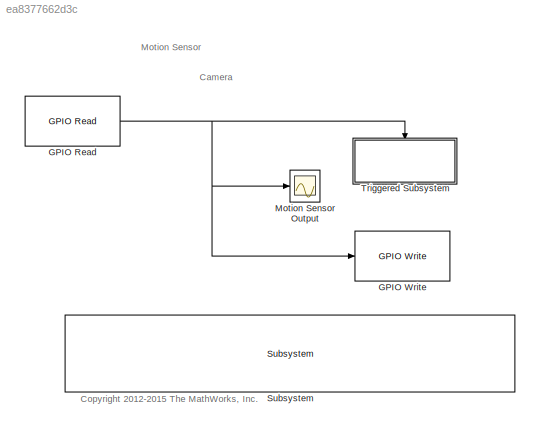
MODEL slx_ea8377662d3c
KIND model
CONFIG AbsTol = auto
CONFIG EnableMultiTasking = on
CONFIG FixedStep = auto
CONFIG MaxStep = auto
CONFIG MinStep = auto
CONFIG RelTol = 1e-3
CONFIG SampleTimeConstraint = Unconstrained
CONFIG Solver = ode45
CONFIG SolverName = ode45
CONFIG StartTime = 0.0
CONFIG StopTime = 10.0
BLOCK [Reference] GPIO Read  REF=embdlinuxlib/GPIO Read
  Ports = [0, 1]
  SourceBlock = embdlinuxlib/GPIO Read
  SourceProductBaseCode = RASPPI
  SourceProductName = Simulink Support Package for Raspberry Pi Hardware
  SourceType = GPIO Read
BLOCK [Reference] GPIO Write  REF=embdlinuxlib/GPIO Write
  Ports = [1]
  SourceBlock = embdlinuxlib/GPIO Write
  SourceProductBaseCode = RASPPI
  SourceProductName = Simulink Support Package for Raspberry Pi Hardware
  SourceType = GPIO Write
BLOCK [Scope] Motion Sensor Output
  Floating = off
  NumInputPorts = 1
  Ports = [1]
  ScopeSpecificationString = Simulink.scopes.TimeScopeBlockCfg('CurrentConfiguration', extmgr.ConfigurationSet(extmgr.Configuration('Core','General UI',true),extmgr.Configuration('Core','Source UI',true),extmgr.Configuration('Sources','WiredSimulink',true,'DataLoggingSaveFormat','StructureWithTime','DataLoggingLimitDataPoints',true,'DataLoggingDecimation','1','DataLoggingDecimateData',true),extmgr.Configuration('Visuals','Tim...<+889ch>
BLOCK [Reference] Subsystem  REF=realtime_examples_misc/Subsystem
  Ports = []
  SourceBlock = realtime_examples_misc/Subsystem
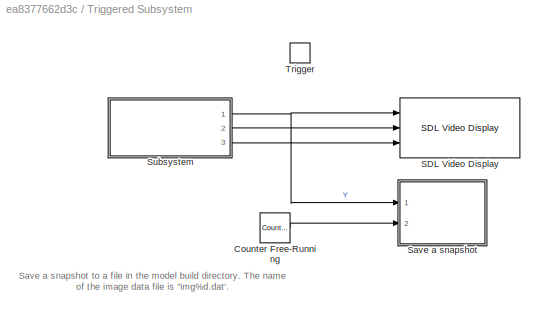
BLOCK [SubSystem] Triggered Subsystem
  Ports = [0, 0, 0, 1]
  RequestExecContextInheritance = off
  TreatAsAtomicUnit = on
BLOCK [Reference] Triggered Subsystem/Counter Free-Running  REF=simulink/Sources/Counter
Free-Running
  Ports = [0, 1]
  SourceBlock = simulink/Sources/Counter\nFree-Running
  SourceProductBaseCode = SL
  SourceProductName = Simulink
  SourceType = Counter Free-Running
BLOCK [Reference] Triggered Subsystem/SDL Video Display  REF=embdlinuxlib/SDL Video Display
  Ports = [3]
  SourceBlock = embdlinuxlib/SDL Video Display
  SourceProductBaseCode = RASPPI
  SourceProductName = Simulink Support Package for Raspberry Pi Hardware
  SourceType = SDL Video Display
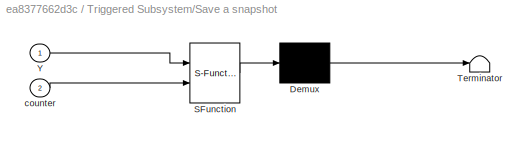
BLOCK [SubSystem] Triggered Subsystem/Save a snapshot
  ErrorFcn = Stateflow.Translate.translate
  PermitHierarchicalResolution = ExplicitOnly
  Ports = [2]
  RequestExecContextInheritance = off
  SFBlockType = MATLAB Function
  TreatAsAtomicUnit = on
BLOCK [Demux] Triggered Subsystem/Save a snapshot/ Demux 
  Outputs = 1
  Ports = [1, 1]
BLOCK [S-Function] Triggered Subsystem/Save a snapshot/ SFunction 
  EnableBusSupport = off
  FunctionName = sf_sfun
  PortCounts = [2 1]
  Ports = [2, 1]
  SFcnIsStateOwnerBlock = off
  SFunctionDeploymentMode = off
  Tag = Stateflow S-Function raspberrypi_motion_sensor_camera 2
BLOCK [Terminator] Triggered Subsystem/Save a snapshot/ Terminator 
BLOCK [Inport] Triggered Subsystem/Save a snapshot/Y
  IconDisplay = Port number
BLOCK [Inport] Triggered Subsystem/Save a snapshot/counter
  IconDisplay = Port number
  Port = 2
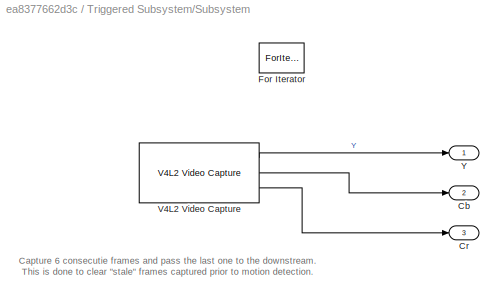
BLOCK [SubSystem] Triggered Subsystem/Subsystem
  Ports = [0, 3]
  RequestExecContextInheritance = off
BLOCK [Outport] Triggered Subsystem/Subsystem/Cb
  IconDisplay = Port number
  Port = 2
BLOCK [Outport] Triggered Subsystem/Subsystem/Cr
  IconDisplay = Port number
  Port = 3
BLOCK [ForIterator] Triggered Subsystem/Subsystem/For Iterator
  IterationLimit = 6
  Ports = []
  ShowIterationPort = off
BLOCK [Reference] Triggered Subsystem/Subsystem/V4L2 Video Capture  REF=embdlinuxlib/V4L2 Video Capture
  Ports = [0, 3]
  SourceBlock = embdlinuxlib/V4L2 Video Capture
  SourceProductBaseCode = RASPPI
  SourceProductName = Simulink Support Package for Raspberry Pi Hardware
  SourceType = V4L2 Video Capture
BLOCK [Outport] Triggered Subsystem/Subsystem/Y
  IconDisplay = Port number
BLOCK [TriggerPort] Triggered Subsystem/Trigger
  Ports = []
  StatesWhenEnabling = held
  VariantControl = Variant
ANNOTATION (root): Camera
ANNOTATION (root): <copyright redacted>
ANNOTATION (root): Motion Sensor
ANNOTATION Triggered Subsystem: Save a snapshot to a file in the model build directory. The name of the image data file is "img%d.dat'.
ANNOTATION Triggered Subsystem/Subsystem: Capture 6 consecutie frames and pass the last one to the downstream. This is done to clear "stale" frames captured prior to motion detection.
NET GPIO Read:1 -> GPIO Write:1, Motion Sensor Output:1, Triggered Subsystem:trigger
LINE Triggered Subsystem/Counter Free-Running:1 -> Triggered Subsystem/Save a snapshot:2
LINE Triggered Subsystem/Subsystem/V4L2 Video Capture:1 -> Triggered Subsystem/Subsystem/Y:1
LINE Triggered Subsystem/Subsystem/V4L2 Video Capture:2 -> Triggered Subsystem/Subsystem/Cb:1
LINE Triggered Subsystem/Subsystem/V4L2 Video Capture:3 -> Triggered Subsystem/Subsystem/Cr:1
NET Triggered Subsystem/Subsystem:1 -> Triggered Subsystem/SDL Video Display:1, Triggered Subsystem/Save a snapshot:1
LINE Triggered Subsystem/Subsystem:2 -> Triggered Subsystem/SDL Video Display:2
LINE Triggered Subsystem/Subsystem:3 -> Triggered Subsystem/SDL Video Display:3
note: NET lines group one-source signal fan-out (src -> all destinations, sorted); 1:1 wires keep LINE
CHART Triggered
Subsystem/Save a snapshot states=1 transitions=1
  STATE_LABEL 'eML_blk_kernel()'
  STATE_LABEL "SCRIPT:\nfunction fcn(Y, counter)\n%#codegen\n\n% Save 160x120 grayscale image to a file\nformat = ['%d ', 0];\nfname  = coder.nullcopy(uint8(zeros(1, 32)));\ncoder.ceval('sprintf', coder.wref(fname), ['img%d.dat', 0], counter);\nfd = coder.opaque('FILE *');\nfd = coder.ceval('fopen', fname, ['w', 0]);\nfor i = 1:160\n    for j = 1:120\n        coder.ceval('fprintf', fd, format, Y(i, j));\n    end\nend\ncoder.ce...<+20ch>"
